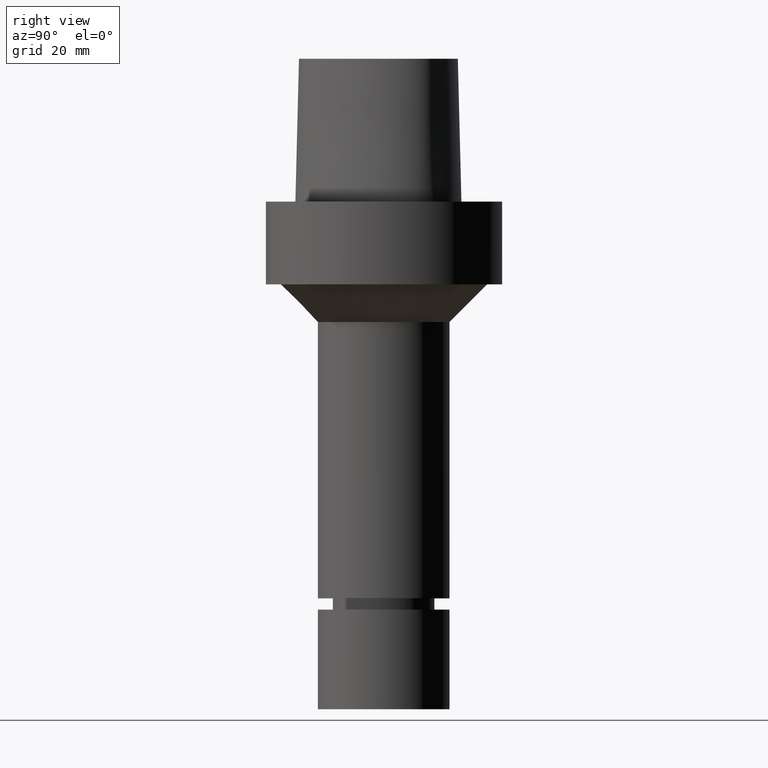
[diagram: clean part render]
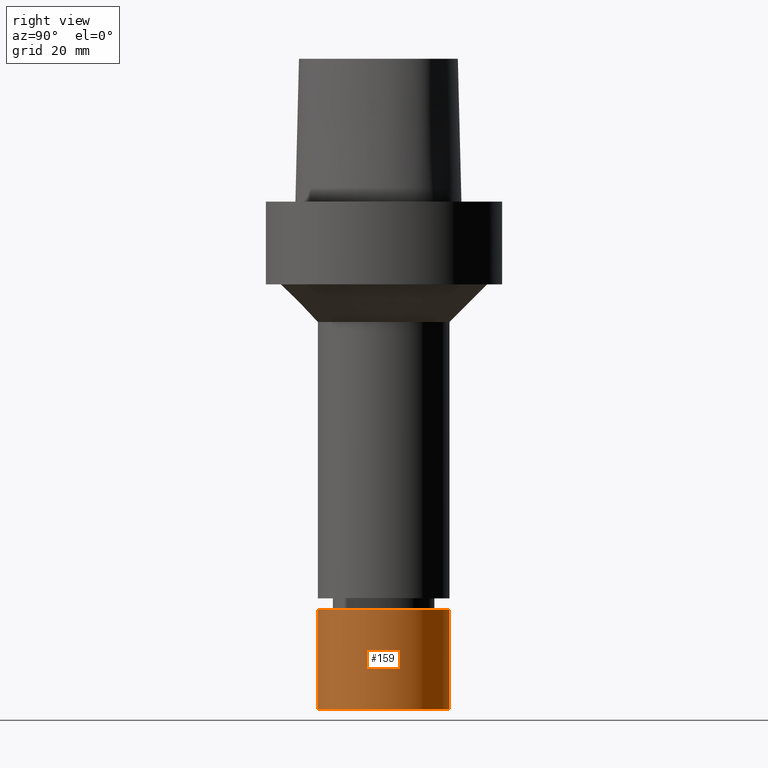
[diagram: same view with one face highlighted and labeled with its STEP entity id]
A machine part, right view. The second image highlights one B-rep face of the part: STEP entity #159.
In plain terms, the highlighted cylindrical surface (bore or boss wall) has radius 17.5 mm, axis along (0, 0, -1).
Its self-contained STEP definition (entity closure, byte-faithful):
#78=EDGE_CURVE('Unnamed[1]',#200,#200,#201,.T.);
#125=EDGE_CURVE('Unnamed[1]',#272,#272,#273,.T.);
#159=ADVANCED_FACE('Unnamed[1]',(#320,#321),#322,.T.);
#200=VERTEX_POINT('',#361);
#201=CIRCLE('',#362,17.5);
#272=VERTEX_POINT('',#552);
#273=CIRCLE('',#553,17.5);
#320=FACE_BOUND('',#698,.T.);
#321=FACE_BOUND('',#699,.T.);
#322=CYLINDRICAL_SURFACE('',#700,17.5);
#361=CARTESIAN_POINT('',(8.26636589424462E-015,17.5,-135.0));
#362=AXIS2_PLACEMENT_3D('',#743,#744,#745);
#552=CARTESIAN_POINT('',(6.64370981970575E-015,17.5,-108.500015258789));
#553=AXIS2_PLACEMENT_3D('',#819,#820,#821);
#698=EDGE_LOOP('',(#872));
#699=EDGE_LOOP('',(#873));
#700=AXIS2_PLACEMENT_3D('',#874,#875,#876);
#743=CARTESIAN_POINT('',(8.26636589424462E-015,1.65327317884892E-014,-135.0));
#744=DIRECTION('',(6.12323399573677E-017,1.22464679914735E-016,-1.0));
#745=DIRECTION('',(-1.23259516440783E-032,1.0,1.22464679914735E-016));
#819=CARTESIAN_POINT('',(6.64370981970575E-015,1.32874196394115E-014,-108.500015258789));
#820=DIRECTION('',(6.12323399573677E-017,1.22464679914735E-016,-1.0));
#821=DIRECTION('',(-1.23259516440783E-032,1.0,1.22464679914735E-016));
#872=ORIENTED_EDGE('',*,*,#78,.F.);
#873=ORIENTED_EDGE('',*,*,#125,.T.);
#874=CARTESIAN_POINT('',(7.45503785697519E-015,1.49100757139504E-014,-121.750007629394));
#875=DIRECTION('',(6.12323399573677E-017,1.22464679914735E-016,-1.0));
#876=DIRECTION('',(-1.23259516440783E-032,1.0,1.22464679914735E-016));